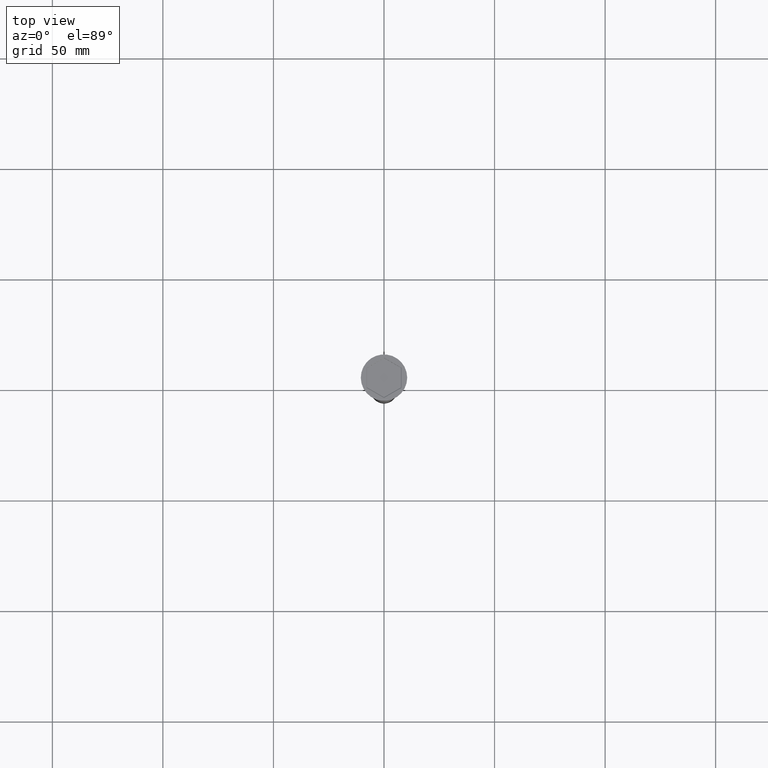
[diagram: clean part render]
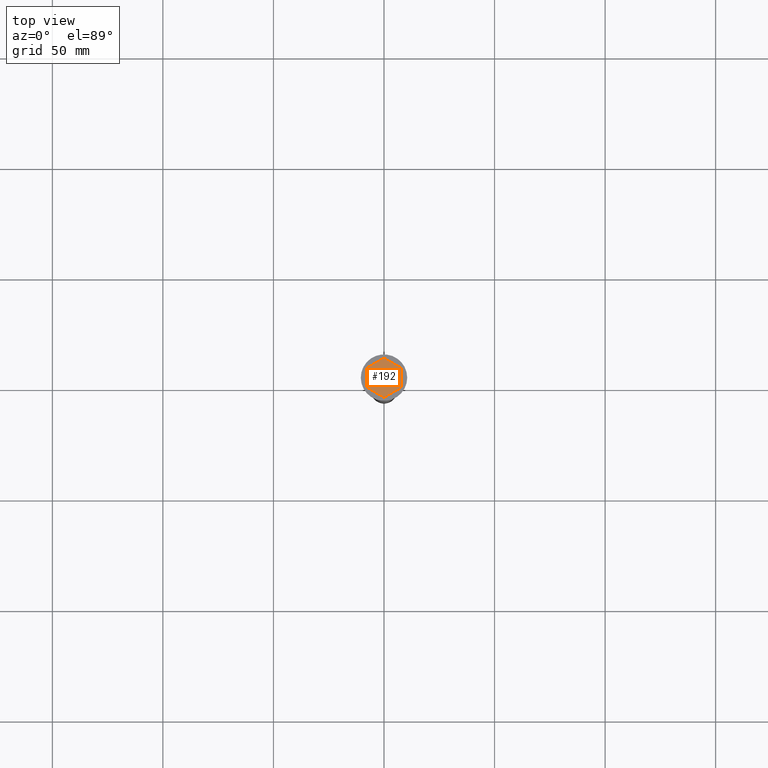
[diagram: same view with one face highlighted and labeled with its STEP entity id]
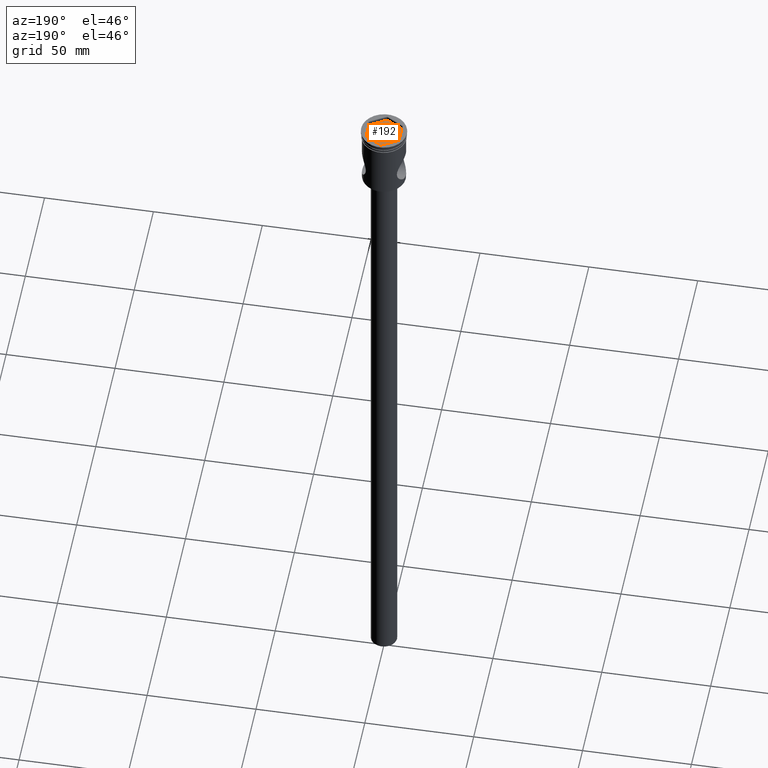
[diagram: same view with one face highlighted and labeled with its STEP entity id]
A machine part, top view. The second image highlights one B-rep face of the part: STEP entity #192.
A second angle (auxiliary view) of the same face is appended — the face is thin or edge-on in the first view.
In plain terms, the highlighted planar face has unit normal (-0, 0, 1).
Its self-contained STEP definition (entity closure, byte-faithful):
#2 = CARTESIAN_POINT ( 'NONE',  ( -7.700000000000000178, -4.445597072760118174, -2.000000000000000000 ) ) ;
#5 = CARTESIAN_POINT ( 'NONE',  ( 8.673617379884035472E-16, 8.891194145520236347, -2.000000000000000000 ) ) ;
#23 = VERTEX_POINT ( 'NONE', #5 ) ;
#64 = EDGE_CURVE ( 'NONE', #641, #23, #1439, .T. ) ;
#111 = CARTESIAN_POINT ( 'NONE',  ( 8.673617379884035472E-16, 8.891194145520236347, -2.000000000000000000 ) ) ;
#120 = CARTESIAN_POINT ( 'NONE',  ( -4.336808689942017736E-16, -8.891194145520236347, -2.000000000000000000 ) ) ;
#136 = VERTEX_POINT ( 'NONE', #857 ) ;
#144 = ORIENTED_EDGE ( 'NONE', *, *, #64, .T. ) ;
#192 = ADVANCED_FACE ( 'NONE', ( #334 ), #1369, .T. ) ;
#236 = CARTESIAN_POINT ( 'NONE',  ( 7.700000000000000178, 4.445597072760118174, -2.000000000000000000 ) ) ;
#269 = VECTOR ( 'NONE', #1006, 1000.000000000000000 ) ;
#294 = VECTOR ( 'NONE', #1273, 1000.000000000000000 ) ;
#334 = FACE_OUTER_BOUND ( 'NONE', #662, .T. ) ;
#387 = VERTEX_POINT ( 'NONE', #1044 ) ;
#392 = EDGE_CURVE ( 'NONE', #136, #387, #442, .T. ) ;
#435 = EDGE_CURVE ( 'NONE', #387, #1426, #473, .T. ) ;
#442 = LINE ( 'NONE', #900, #1158 ) ;
#467 = VECTOR ( 'NONE', #1308, 999.9999999999998863 ) ;
#469 = LINE ( 'NONE', #120, #1226 ) ;
#472 = VECTOR ( 'NONE', #612, 1000.000000000000114 ) ;
#473 = LINE ( 'NONE', #2, #467 ) ;
#499 = CARTESIAN_POINT ( 'NONE',  ( 7.699999999999999289, -4.445597072760119950, -2.000000000000000000 ) ) ;
#590 = CARTESIAN_POINT ( 'NONE',  ( -4.336808689942017736E-16, -8.891194145520236347, -2.000000000000000000 ) ) ;
#603 = ORIENTED_EDGE ( 'NONE', *, *, #938, .T. ) ;
#612 = DIRECTION ( 'NONE',  ( -0.8660254037844385966, 0.4999999999999999445, 0.000000000000000000 ) ) ;
#614 = AXIS2_PLACEMENT_3D ( 'NONE', #792, #806, #683 ) ;
#641 = VERTEX_POINT ( 'NONE', #236 ) ;
#648 = EDGE_CURVE ( 'NONE', #23, #136, #1281, .T. ) ;
#662 = EDGE_LOOP ( 'NONE', ( #144, #1331, #1419, #1399, #756, #603 ) ) ;
#683 = DIRECTION ( 'NONE',  ( 1.000000000000000000, 0.000000000000000000, 0.000000000000000000 ) ) ;
#690 = EDGE_CURVE ( 'NONE', #1426, #825, #469, .T. ) ;
#756 = ORIENTED_EDGE ( 'NONE', *, *, #690, .T. ) ;
#792 = CARTESIAN_POINT ( 'NONE',  ( 0.000000000000000000, 0.000000000000000000, -2.000000000000000000 ) ) ;
#806 = DIRECTION ( 'NONE',  ( -0.000000000000000000, 0.000000000000000000, 1.000000000000000000 ) ) ;
#825 = VERTEX_POINT ( 'NONE', #499 ) ;
#857 = CARTESIAN_POINT ( 'NONE',  ( -7.699999999999999289, 4.445597072760116397, -2.000000000000000000 ) ) ;
#900 = CARTESIAN_POINT ( 'NONE',  ( -7.699999999999999289, 4.445597072760116397, -2.000000000000000000 ) ) ;
#938 = EDGE_CURVE ( 'NONE', #825, #641, #1238, .T. ) ;
#1006 = DIRECTION ( 'NONE',  ( 9.755289602189344775E-17, 1.000000000000000000, 0.000000000000000000 ) ) ;
#1044 = CARTESIAN_POINT ( 'NONE',  ( -7.700000000000000178, -4.445597072760118174, -2.000000000000000000 ) ) ;
#1069 = DIRECTION ( 'NONE',  ( 0.8660254037844387076, 0.4999999999999997780, 0.000000000000000000 ) ) ;
#1122 = CARTESIAN_POINT ( 'NONE',  ( 7.699999999999999289, -4.445597072760119950, -2.000000000000000000 ) ) ;
#1158 = VECTOR ( 'NONE', #1513, 1000.000000000000000 ) ;
#1226 = VECTOR ( 'NONE', #1069, 1000.000000000000114 ) ;
#1238 = LINE ( 'NONE', #1122, #269 ) ;
#1273 = DIRECTION ( 'NONE',  ( -0.8660254037844385966, -0.5000000000000001110, 0.000000000000000000 ) ) ;
#1281 = LINE ( 'NONE', #111, #294 ) ;
#1308 = DIRECTION ( 'NONE',  ( 0.8660254037844387076, -0.4999999999999999445, 0.000000000000000000 ) ) ;
#1331 = ORIENTED_EDGE ( 'NONE', *, *, #648, .T. ) ;
#1369 = PLANE ( 'NONE',  #614 ) ;
#1399 = ORIENTED_EDGE ( 'NONE', *, *, #435, .T. ) ;
#1419 = ORIENTED_EDGE ( 'NONE', *, *, #392, .T. ) ;
#1423 = CARTESIAN_POINT ( 'NONE',  ( 7.700000000000000178, 4.445597072760118174, -2.000000000000000000 ) ) ;
#1426 = VERTEX_POINT ( 'NONE', #590 ) ;
#1439 = LINE ( 'NONE', #1423, #472 ) ;
#1513 = DIRECTION ( 'NONE',  ( -9.755289602189348473E-17, -1.000000000000000000, 0.000000000000000000 ) ) ;